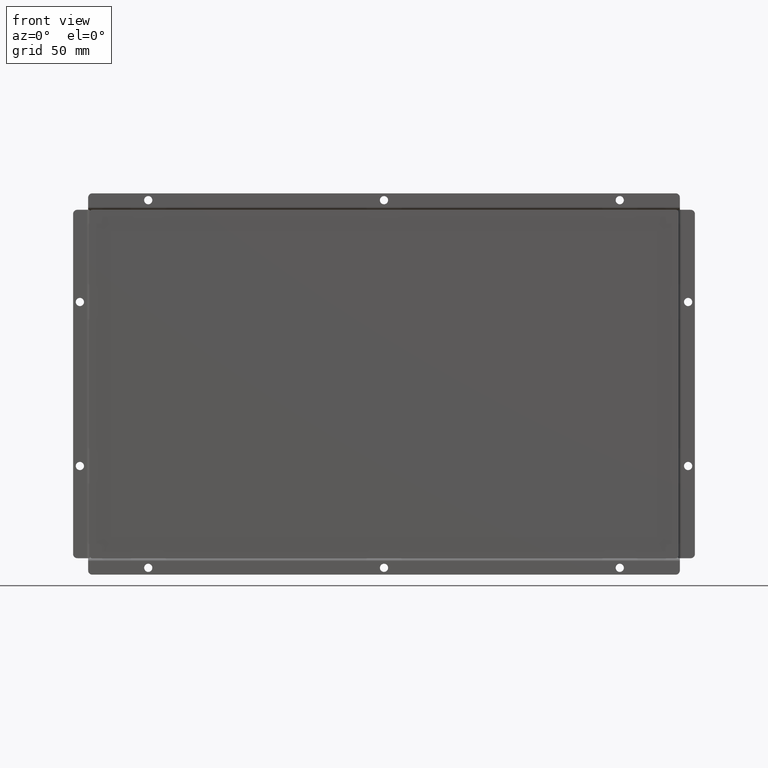
[diagram: clean part render]
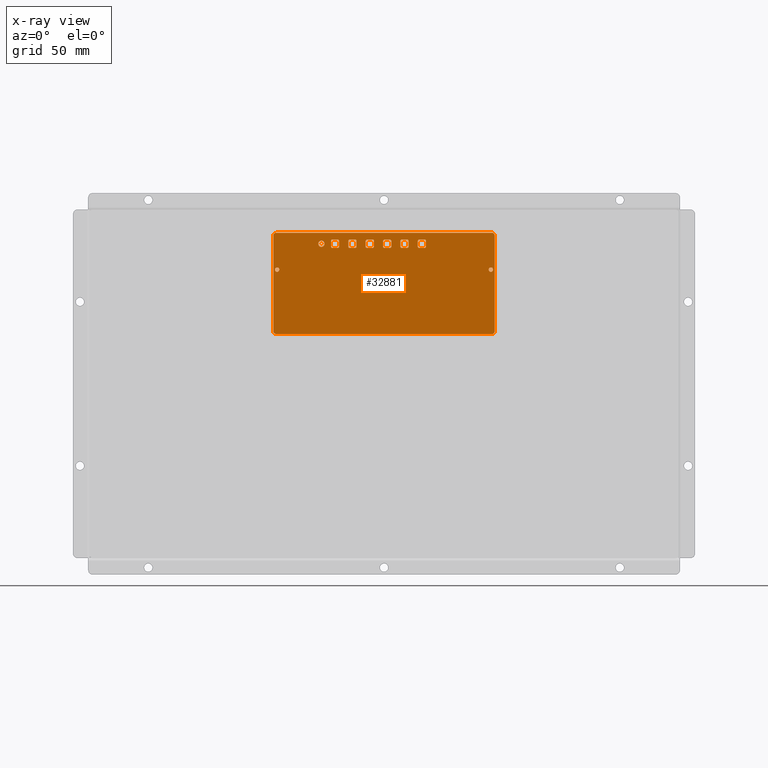
[diagram: x-ray — body ghosted, one internal face saturated and labeled with its STEP entity id]
A machine part, front view, then the same camera in x-ray: the body is ghosted and one INTERNAL B-rep face — a face not visible from any outside direction — is saturated and labeled: STEP entity #32881.
In plain terms, the highlighted planar face has unit normal (0, 1, -0).
Its self-contained STEP definition (entity closure, byte-faithful):
#805=FACE_BOUND('',#5186,.T.);
#806=FACE_BOUND('',#5187,.T.);
#807=FACE_BOUND('',#5188,.T.);
#808=FACE_BOUND('',#5189,.T.);
#809=FACE_BOUND('',#5190,.T.);
#810=FACE_BOUND('',#5191,.T.);
#811=FACE_BOUND('',#5192,.T.);
#812=FACE_BOUND('',#5193,.T.);
#813=FACE_BOUND('',#5194,.T.);
#1765=CIRCLE('',#35388,1.);
#1767=CIRCLE('',#35392,1.);
#1769=CIRCLE('',#35396,1.);
#1771=CIRCLE('',#35400,1.);
#1773=CIRCLE('',#35404,1.);
#1775=CIRCLE('',#35408,1.);
#1777=CIRCLE('',#35412,1.);
#1779=CIRCLE('',#35416,1.);
#1781=CIRCLE('',#35420,1.);
#1783=CIRCLE('',#35424,1.);
#1785=CIRCLE('',#35428,1.);
#1787=CIRCLE('',#35432,1.);
#1789=CIRCLE('',#35436,1.);
#1791=CIRCLE('',#35440,1.);
#1793=CIRCLE('',#35444,1.);
#1795=CIRCLE('',#35448,1.);
#1797=CIRCLE('',#35452,1.);
#1799=CIRCLE('',#35456,1.);
#1801=CIRCLE('',#35460,1.);
#1803=CIRCLE('',#35464,1.);
#1805=CIRCLE('',#35468,1.);
#1807=CIRCLE('',#35472,1.);
#1809=CIRCLE('',#35476,1.);
#1811=CIRCLE('',#35480,1.);
#1813=CIRCLE('',#35484,2.25);
#1815=CIRCLE('',#35487,2.);
#1816=CIRCLE('',#35490,2.);
#1817=CIRCLE('',#35491,2.);
#1818=CIRCLE('',#35492,2.);
#1819=CIRCLE('',#35493,1.6);
#1820=CIRCLE('',#35494,1.6);
#3251=FACE_OUTER_BOUND('',#5185,.T.);
#5185=EDGE_LOOP('',(#22855,#22856,#22857,#22858,#22859,#22860,#22861,#22862));
#5186=EDGE_LOOP('',(#22863,#22864,#22865,#22866,#22867,#22868,#22869,#22870));
#5187=EDGE_LOOP('',(#22871,#22872,#22873,#22874,#22875,#22876,#22877,#22878));
#5188=EDGE_LOOP('',(#22879,#22880,#22881,#22882,#22883,#22884,#22885,#22886));
#5189=EDGE_LOOP('',(#22887));
#5190=EDGE_LOOP('',(#22888,#22889,#22890,#22891,#22892,#22893,#22894,#22895));
#5191=EDGE_LOOP('',(#22896,#22897,#22898,#22899,#22900,#22901,#22902,#22903));
#5192=EDGE_LOOP('',(#22904,#22905,#22906,#22907,#22908,#22909,#22910,#22911));
#5193=EDGE_LOOP('',(#22912));
#5194=EDGE_LOOP('',(#22913));
#7431=LINE('',#49773,#10527);
#7434=LINE('',#49784,#10530);
#7439=LINE('',#49797,#10535);
#7441=LINE('',#49805,#10537);
#7447=LINE('',#49821,#10543);
#7450=LINE('',#49832,#10546);
#7455=LINE('',#49845,#10551);
#7457=LINE('',#49853,#10553);
#7463=LINE('',#49869,#10559);
#7466=LINE('',#49880,#10562);
#7471=LINE('',#49893,#10567);
#7473=LINE('',#49901,#10569);
#7479=LINE('',#49917,#10575);
#7482=LINE('',#49928,#10578);
#7487=LINE('',#49941,#10583);
#7489=LINE('',#49949,#10585);
#7495=LINE('',#49965,#10591);
#7498=LINE('',#49976,#10594);
#7503=LINE('',#49989,#10599);
#7505=LINE('',#49997,#10601);
#7511=LINE('',#50013,#10607);
#7514=LINE('',#50024,#10610);
#7519=LINE('',#50037,#10615);
#7521=LINE('',#50045,#10617);
#7526=LINE('',#50064,#10622);
#7529=LINE('',#50070,#10625);
#7530=LINE('',#50074,#10626);
#7531=LINE('',#50078,#10627);
#10527=VECTOR('',#39610,10.);
#10530=VECTOR('',#39621,10.);
#10535=VECTOR('',#39634,10.);
#10537=VECTOR('',#39644,10.);
#10543=VECTOR('',#39658,10.);
#10546=VECTOR('',#39669,10.);
#10551=VECTOR('',#39682,10.);
#10553=VECTOR('',#39692,10.);
#10559=VECTOR('',#39706,10.);
#10562=VECTOR('',#39717,10.);
#10567=VECTOR('',#39730,10.);
#10569=VECTOR('',#39740,10.);
#10575=VECTOR('',#39754,10.);
#10578=VECTOR('',#39765,10.);
#10583=VECTOR('',#39778,10.);
#10585=VECTOR('',#39788,10.);
#10591=VECTOR('',#39802,10.);
#10594=VECTOR('',#39813,10.);
#10599=VECTOR('',#39826,10.);
#10601=VECTOR('',#39836,10.);
#10607=VECTOR('',#39850,10.);
#10610=VECTOR('',#39861,10.);
#10615=VECTOR('',#39874,10.);
#10617=VECTOR('',#39884,10.);
#10622=VECTOR('',#39903,10.);
#10625=VECTOR('',#39908,10.);
#10626=VECTOR('',#39911,10.);
#10627=VECTOR('',#39914,10.);
#13631=VERTEX_POINT('',#49763);
#13632=VERTEX_POINT('',#49765);
#13634=VERTEX_POINT('',#49771);
#13637=VERTEX_POINT('',#49778);
#13638=VERTEX_POINT('',#49780);
#13640=VERTEX_POINT('',#49789);
#13642=VERTEX_POINT('',#49795);
#13644=VERTEX_POINT('',#49801);
#13647=VERTEX_POINT('',#49811);
#13648=VERTEX_POINT('',#49813);
#13650=VERTEX_POINT('',#49819);
#13653=VERTEX_POINT('',#49826);
#13654=VERTEX_POINT('',#49828);
#13656=VERTEX_POINT('',#49837);
#13658=VERTEX_POINT('',#49843);
#13660=VERTEX_POINT('',#49849);
#13663=VERTEX_POINT('',#49859);
#13664=VERTEX_POINT('',#49861);
#13666=VERTEX_POINT('',#49867);
#13669=VERTEX_POINT('',#49874);
#13670=VERTEX_POINT('',#49876);
#13672=VERTEX_POINT('',#49885);
#13674=VERTEX_POINT('',#49891);
#13676=VERTEX_POINT('',#49897);
#13679=VERTEX_POINT('',#49907);
#13680=VERTEX_POINT('',#49909);
#13682=VERTEX_POINT('',#49915);
#13685=VERTEX_POINT('',#49922);
#13686=VERTEX_POINT('',#49924);
#13688=VERTEX_POINT('',#49933);
#13690=VERTEX_POINT('',#49939);
#13692=VERTEX_POINT('',#49945);
#13695=VERTEX_POINT('',#49955);
#13696=VERTEX_POINT('',#49957);
#13698=VERTEX_POINT('',#49963);
#13701=VERTEX_POINT('',#49970);
#13702=VERTEX_POINT('',#49972);
#13704=VERTEX_POINT('',#49981);
#13706=VERTEX_POINT('',#49987);
#13708=VERTEX_POINT('',#49993);
#13711=VERTEX_POINT('',#50003);
#13712=VERTEX_POINT('',#50005);
#13714=VERTEX_POINT('',#50011);
#13717=VERTEX_POINT('',#50018);
#13718=VERTEX_POINT('',#50020);
#13720=VERTEX_POINT('',#50029);
#13722=VERTEX_POINT('',#50035);
#13724=VERTEX_POINT('',#50041);
#13726=VERTEX_POINT('',#50050);
#13729=VERTEX_POINT('',#50057);
#13730=VERTEX_POINT('',#50059);
#13731=VERTEX_POINT('',#50063);
#13733=VERTEX_POINT('',#50069);
#13734=VERTEX_POINT('',#50071);
#13735=VERTEX_POINT('',#50073);
#13736=VERTEX_POINT('',#50075);
#13737=VERTEX_POINT('',#50077);
#13738=VERTEX_POINT('',#50080);
#13739=VERTEX_POINT('',#50082);
#17066=EDGE_CURVE('',#13631,#13632,#1765,.T.);
#17070=EDGE_CURVE('',#13631,#13634,#7431,.T.);
#17073=EDGE_CURVE('',#13637,#13638,#1767,.T.);
#17075=EDGE_CURVE('',#13637,#13632,#7434,.T.);
#17079=EDGE_CURVE('',#13640,#13634,#1769,.T.);
#17082=EDGE_CURVE('',#13640,#13642,#7439,.T.);
#17085=EDGE_CURVE('',#13644,#13642,#1771,.T.);
#17086=EDGE_CURVE('',#13644,#13638,#7441,.T.);
#17090=EDGE_CURVE('',#13647,#13648,#1773,.T.);
#17094=EDGE_CURVE('',#13647,#13650,#7447,.T.);
#17097=EDGE_CURVE('',#13653,#13654,#1775,.T.);
#17099=EDGE_CURVE('',#13653,#13648,#7450,.T.);
#17103=EDGE_CURVE('',#13656,#13650,#1777,.T.);
#17106=EDGE_CURVE('',#13656,#13658,#7455,.T.);
#17109=EDGE_CURVE('',#13660,#13658,#1779,.T.);
#17110=EDGE_CURVE('',#13660,#13654,#7457,.T.);
#17114=EDGE_CURVE('',#13663,#13664,#1781,.T.);
#17118=EDGE_CURVE('',#13663,#13666,#7463,.T.);
#17121=EDGE_CURVE('',#13669,#13670,#1783,.T.);
#17123=EDGE_CURVE('',#13669,#13664,#7466,.T.);
#17127=EDGE_CURVE('',#13672,#13666,#1785,.T.);
#17130=EDGE_CURVE('',#13672,#13674,#7471,.T.);
#17133=EDGE_CURVE('',#13676,#13674,#1787,.T.);
#17134=EDGE_CURVE('',#13676,#13670,#7473,.T.);
#17138=EDGE_CURVE('',#13679,#13680,#1789,.T.);
#17142=EDGE_CURVE('',#13679,#13682,#7479,.T.);
#17145=EDGE_CURVE('',#13685,#13686,#1791,.T.);
#17147=EDGE_CURVE('',#13685,#13680,#7482,.T.);
#17151=EDGE_CURVE('',#13688,#13682,#1793,.T.);
#17154=EDGE_CURVE('',#13688,#13690,#7487,.T.);
#17157=EDGE_CURVE('',#13692,#13690,#1795,.T.);
#17158=EDGE_CURVE('',#13692,#13686,#7489,.T.);
#17162=EDGE_CURVE('',#13695,#13696,#1797,.T.);
#17166=EDGE_CURVE('',#13695,#13698,#7495,.T.);
#17169=EDGE_CURVE('',#13701,#13702,#1799,.T.);
#17171=EDGE_CURVE('',#13701,#13696,#7498,.T.);
#17175=EDGE_CURVE('',#13704,#13698,#1801,.T.);
#17178=EDGE_CURVE('',#13704,#13706,#7503,.T.);
#17181=EDGE_CURVE('',#13708,#13706,#1803,.T.);
#17182=EDGE_CURVE('',#13708,#13702,#7505,.T.);
#17186=EDGE_CURVE('',#13711,#13712,#1805,.T.);
#17190=EDGE_CURVE('',#13711,#13714,#7511,.T.);
#17193=EDGE_CURVE('',#13717,#13718,#1807,.T.);
#17195=EDGE_CURVE('',#13717,#13712,#7514,.T.);
#17199=EDGE_CURVE('',#13720,#13714,#1809,.T.);
#17202=EDGE_CURVE('',#13720,#13722,#7519,.T.);
#17205=EDGE_CURVE('',#13724,#13722,#1811,.T.);
#17206=EDGE_CURVE('',#13724,#13718,#7521,.T.);
#17210=EDGE_CURVE('',#13726,#13726,#1813,.T.);
#17213=EDGE_CURVE('',#13729,#13730,#1815,.T.);
#17215=EDGE_CURVE('',#13731,#13730,#7526,.T.);
#17218=EDGE_CURVE('',#13729,#13733,#7529,.T.);
#17219=EDGE_CURVE('',#13734,#13733,#1816,.T.);
#17220=EDGE_CURVE('',#13734,#13735,#7530,.T.);
#17221=EDGE_CURVE('',#13736,#13735,#1817,.T.);
#17222=EDGE_CURVE('',#13736,#13737,#7531,.T.);
#17223=EDGE_CURVE('',#13731,#13737,#1818,.T.);
#17224=EDGE_CURVE('',#13738,#13738,#1819,.T.);
#17225=EDGE_CURVE('',#13739,#13739,#1820,.T.);
#22855=ORIENTED_EDGE('',*,*,#17213,.F.);
#22856=ORIENTED_EDGE('',*,*,#17218,.T.);
#22857=ORIENTED_EDGE('',*,*,#17219,.F.);
#22858=ORIENTED_EDGE('',*,*,#17220,.T.);
#22859=ORIENTED_EDGE('',*,*,#17221,.F.);
#22860=ORIENTED_EDGE('',*,*,#17222,.T.);
#22861=ORIENTED_EDGE('',*,*,#17223,.F.);
#22862=ORIENTED_EDGE('',*,*,#17215,.T.);
#22863=ORIENTED_EDGE('',*,*,#17202,.T.);
#22864=ORIENTED_EDGE('',*,*,#17205,.F.);
#22865=ORIENTED_EDGE('',*,*,#17206,.T.);
#22866=ORIENTED_EDGE('',*,*,#17193,.F.);
#22867=ORIENTED_EDGE('',*,*,#17195,.T.);
#22868=ORIENTED_EDGE('',*,*,#17186,.F.);
#22869=ORIENTED_EDGE('',*,*,#17190,.T.);
#22870=ORIENTED_EDGE('',*,*,#17199,.F.);
#22871=ORIENTED_EDGE('',*,*,#17178,.T.);
#22872=ORIENTED_EDGE('',*,*,#17181,.F.);
#22873=ORIENTED_EDGE('',*,*,#17182,.T.);
#22874=ORIENTED_EDGE('',*,*,#17169,.F.);
#22875=ORIENTED_EDGE('',*,*,#17171,.T.);
#22876=ORIENTED_EDGE('',*,*,#17162,.F.);
#22877=ORIENTED_EDGE('',*,*,#17166,.T.);
#22878=ORIENTED_EDGE('',*,*,#17175,.F.);
#22879=ORIENTED_EDGE('',*,*,#17154,.T.);
#22880=ORIENTED_EDGE('',*,*,#17157,.F.);
#22881=ORIENTED_EDGE('',*,*,#17158,.T.);
#22882=ORIENTED_EDGE('',*,*,#17145,.F.);
#22883=ORIENTED_EDGE('',*,*,#17147,.T.);
#22884=ORIENTED_EDGE('',*,*,#17138,.F.);
#22885=ORIENTED_EDGE('',*,*,#17142,.T.);
#22886=ORIENTED_EDGE('',*,*,#17151,.F.);
#22887=ORIENTED_EDGE('',*,*,#17210,.T.);
#22888=ORIENTED_EDGE('',*,*,#17130,.T.);
#22889=ORIENTED_EDGE('',*,*,#17133,.F.);
#22890=ORIENTED_EDGE('',*,*,#17134,.T.);
#22891=ORIENTED_EDGE('',*,*,#17121,.F.);
#22892=ORIENTED_EDGE('',*,*,#17123,.T.);
#22893=ORIENTED_EDGE('',*,*,#17114,.F.);
#22894=ORIENTED_EDGE('',*,*,#17118,.T.);
#22895=ORIENTED_EDGE('',*,*,#17127,.F.);
#22896=ORIENTED_EDGE('',*,*,#17106,.T.);
#22897=ORIENTED_EDGE('',*,*,#17109,.F.);
#22898=ORIENTED_EDGE('',*,*,#17110,.T.);
#22899=ORIENTED_EDGE('',*,*,#17097,.F.);
#22900=ORIENTED_EDGE('',*,*,#17099,.T.);
#22901=ORIENTED_EDGE('',*,*,#17090,.F.);
#22902=ORIENTED_EDGE('',*,*,#17094,.T.);
#22903=ORIENTED_EDGE('',*,*,#17103,.F.);
#22904=ORIENTED_EDGE('',*,*,#17082,.T.);
#22905=ORIENTED_EDGE('',*,*,#17085,.F.);
#22906=ORIENTED_EDGE('',*,*,#17086,.T.);
#22907=ORIENTED_EDGE('',*,*,#17073,.F.);
#22908=ORIENTED_EDGE('',*,*,#17075,.T.);
#22909=ORIENTED_EDGE('',*,*,#17066,.F.);
#22910=ORIENTED_EDGE('',*,*,#17070,.T.);
#22911=ORIENTED_EDGE('',*,*,#17079,.F.);
#22912=ORIENTED_EDGE('',*,*,#17224,.T.);
#22913=ORIENTED_EDGE('',*,*,#17225,.T.);
#30425=PLANE('',#35489);
#32881=ADVANCED_FACE('',(#3251,#805,#806,#807,#808,#809,#810,#811,#812,
#813),#30425,.F.);
#35388=AXIS2_PLACEMENT_3D('',#49766,#39603,#39604);
#35392=AXIS2_PLACEMENT_3D('',#49781,#39616,#39617);
#35396=AXIS2_PLACEMENT_3D('',#49791,#39628,#39629);
#35400=AXIS2_PLACEMENT_3D('',#49803,#39640,#39641);
#35404=AXIS2_PLACEMENT_3D('',#49814,#39651,#39652);
#35408=AXIS2_PLACEMENT_3D('',#49829,#39664,#39665);
#35412=AXIS2_PLACEMENT_3D('',#49839,#39676,#39677);
#35416=AXIS2_PLACEMENT_3D('',#49851,#39688,#39689);
#35420=AXIS2_PLACEMENT_3D('',#49862,#39699,#39700);
#35424=AXIS2_PLACEMENT_3D('',#49877,#39712,#39713);
#35428=AXIS2_PLACEMENT_3D('',#49887,#39724,#39725);
#35432=AXIS2_PLACEMENT_3D('',#49899,#39736,#39737);
#35436=AXIS2_PLACEMENT_3D('',#49910,#39747,#39748);
#35440=AXIS2_PLACEMENT_3D('',#49925,#39760,#39761);
#35444=AXIS2_PLACEMENT_3D('',#49935,#39772,#39773);
#35448=AXIS2_PLACEMENT_3D('',#49947,#39784,#39785);
#35452=AXIS2_PLACEMENT_3D('',#49958,#39795,#39796);
#35456=AXIS2_PLACEMENT_3D('',#49973,#39808,#39809);
#35460=AXIS2_PLACEMENT_3D('',#49983,#39820,#39821);
#35464=AXIS2_PLACEMENT_3D('',#49995,#39832,#39833);
#35468=AXIS2_PLACEMENT_3D('',#50006,#39843,#39844);
#35472=AXIS2_PLACEMENT_3D('',#50021,#39856,#39857);
#35476=AXIS2_PLACEMENT_3D('',#50031,#39868,#39869);
#35480=AXIS2_PLACEMENT_3D('',#50043,#39880,#39881);
#35484=AXIS2_PLACEMENT_3D('',#50052,#39891,#39892);
#35487=AXIS2_PLACEMENT_3D('',#50060,#39898,#39899);
#35489=AXIS2_PLACEMENT_3D('',#50068,#39906,#39907);
#35490=AXIS2_PLACEMENT_3D('',#50072,#39909,#39910);
#35491=AXIS2_PLACEMENT_3D('',#50076,#39912,#39913);
#35492=AXIS2_PLACEMENT_3D('',#50079,#39915,#39916);
#35493=AXIS2_PLACEMENT_3D('',#50081,#39917,#39918);
#35494=AXIS2_PLACEMENT_3D('',#50083,#39919,#39920);
#39603=DIRECTION('center_axis',(0.,0.,-1.));
#39604=DIRECTION('ref_axis',(-0.707106781186551,-0.707106781186544,0.));
#39610=DIRECTION('',(1.,0.,0.));
#39616=DIRECTION('center_axis',(0.,0.,-1.));
#39617=DIRECTION('ref_axis',(-0.707106781186548,0.707106781186548,0.));
#39621=DIRECTION('',(0.,-1.,0.));
#39628=DIRECTION('center_axis',(0.,0.,-1.));
#39629=DIRECTION('ref_axis',(0.707106781186548,-0.707106781186548,0.));
#39634=DIRECTION('',(0.,1.,0.));
#39640=DIRECTION('center_axis',(0.,0.,-1.));
#39641=DIRECTION('ref_axis',(0.707106781186544,0.707106781186551,0.));
#39644=DIRECTION('',(-1.,0.,0.));
#39651=DIRECTION('center_axis',(0.,0.,-1.));
#39652=DIRECTION('ref_axis',(-0.707106781186549,-0.707106781186546,0.));
#39658=DIRECTION('',(1.,0.,0.));
#39664=DIRECTION('center_axis',(0.,0.,-1.));
#39665=DIRECTION('ref_axis',(-0.707106781186545,0.70710678118655,0.));
#39669=DIRECTION('',(0.,-1.,0.));
#39676=DIRECTION('center_axis',(0.,0.,-1.));
#39677=DIRECTION('ref_axis',(0.707106781186549,-0.707106781186546,0.));
#39682=DIRECTION('',(0.,1.,0.));
#39688=DIRECTION('center_axis',(0.,0.,-1.));
#39689=DIRECTION('ref_axis',(0.707106781186546,0.707106781186549,0.));
#39692=DIRECTION('',(-1.,0.,0.));
#39699=DIRECTION('center_axis',(0.,0.,-1.));
#39700=DIRECTION('ref_axis',(-0.707106781186549,-0.707106781186546,0.));
#39706=DIRECTION('',(1.,0.,0.));
#39712=DIRECTION('center_axis',(0.,0.,-1.));
#39713=DIRECTION('ref_axis',(-0.707106781186546,0.707106781186549,0.));
#39717=DIRECTION('',(0.,-1.,0.));
#39724=DIRECTION('center_axis',(0.,0.,-1.));
#39725=DIRECTION('ref_axis',(0.707106781186549,-0.707106781186546,0.));
#39730=DIRECTION('',(0.,1.,0.));
#39736=DIRECTION('center_axis',(0.,0.,-1.));
#39737=DIRECTION('ref_axis',(0.707106781186546,0.707106781186549,0.));
#39740=DIRECTION('',(-1.,0.,0.));
#39747=DIRECTION('center_axis',(0.,0.,-1.));
#39748=DIRECTION('ref_axis',(-0.707106781186548,-0.707106781186548,0.));
#39754=DIRECTION('',(1.,0.,0.));
#39760=DIRECTION('center_axis',(0.,0.,-1.));
#39761=DIRECTION('ref_axis',(-0.707106781186544,0.707106781186551,0.));
#39765=DIRECTION('',(0.,-1.,0.));
#39772=DIRECTION('center_axis',(0.,0.,-1.));
#39773=DIRECTION('ref_axis',(0.707106781186551,-0.707106781186544,0.));
#39778=DIRECTION('',(0.,1.,0.));
#39784=DIRECTION('center_axis',(0.,0.,-1.));
#39785=DIRECTION('ref_axis',(0.707106781186548,0.707106781186548,0.));
#39788=DIRECTION('',(-1.,0.,0.));
#39795=DIRECTION('center_axis',(0.,0.,-1.));
#39796=DIRECTION('ref_axis',(-0.707106781186548,-0.707106781186547,0.));
#39802=DIRECTION('',(1.,0.,0.));
#39808=DIRECTION('center_axis',(0.,0.,-1.));
#39809=DIRECTION('ref_axis',(-0.707106781186545,0.70710678118655,0.));
#39813=DIRECTION('',(0.,-1.,0.));
#39820=DIRECTION('center_axis',(0.,0.,-1.));
#39821=DIRECTION('ref_axis',(0.707106781186549,-0.707106781186546,0.));
#39826=DIRECTION('',(0.,1.,0.));
#39832=DIRECTION('center_axis',(0.,0.,-1.));
#39833=DIRECTION('ref_axis',(0.707106781186546,0.707106781186549,0.));
#39836=DIRECTION('',(-1.,0.,0.));
#39843=DIRECTION('center_axis',(0.,0.,-1.));
#39844=DIRECTION('ref_axis',(-0.707106781186549,-0.707106781186546,0.));
#39850=DIRECTION('',(1.,0.,0.));
#39856=DIRECTION('center_axis',(0.,0.,-1.));
#39857=DIRECTION('ref_axis',(-0.707106781186546,0.707106781186549,0.));
#39861=DIRECTION('',(0.,-1.,0.));
#39868=DIRECTION('center_axis',(0.,0.,-1.));
#39869=DIRECTION('ref_axis',(0.707106781186551,-0.707106781186544,0.));
#39874=DIRECTION('',(0.,1.,0.));
#39880=DIRECTION('center_axis',(0.,0.,-1.));
#39881=DIRECTION('ref_axis',(0.707106781186548,0.707106781186548,0.));
#39884=DIRECTION('',(-1.,0.,0.));
#39891=DIRECTION('center_axis',(0.,0.,1.));
#39892=DIRECTION('ref_axis',(-1.,0.,0.));
#39898=DIRECTION('center_axis',(0.,0.,1.));
#39899=DIRECTION('ref_axis',(0.707106781186548,-0.707106781186548,0.));
#39903=DIRECTION('',(-3.00060276925719E-15,-1.,0.));
#39906=DIRECTION('center_axis',(0.,0.,1.));
#39907=DIRECTION('ref_axis',(1.,0.,0.));
#39908=DIRECTION('',(-1.,-4.66019541200685E-16,0.));
#39909=DIRECTION('center_axis',(0.,0.,1.));
#39910=DIRECTION('ref_axis',(-0.707106781186546,-0.707106781186549,0.));
#39911=DIRECTION('',(9.601928861623E-16,1.,0.));
#39912=DIRECTION('center_axis',(0.,0.,1.));
#39913=DIRECTION('ref_axis',(-0.707106781186546,0.707106781186549,0.));
#39914=DIRECTION('',(1.,0.,0.));
#39915=DIRECTION('center_axis',(0.,0.,1.));
#39916=DIRECTION('ref_axis',(0.707106781186548,0.707106781186548,0.));
#39917=DIRECTION('center_axis',(0.,0.,1.));
#39918=DIRECTION('ref_axis',(-1.,0.,0.));
#39919=DIRECTION('center_axis',(0.,0.,1.));
#39920=DIRECTION('ref_axis',(-1.,0.,0.));
#49763=CARTESIAN_POINT('',(32.3,28.9999999999994,0.));
#49765=CARTESIAN_POINT('',(31.3,29.9999999999994,0.));
#49766=CARTESIAN_POINT('Origin',(32.3,29.9999999999994,0.));
#49771=CARTESIAN_POINT('',(36.3,28.9999999999994,0.));
#49773=CARTESIAN_POINT('',(17.9000000000001,28.9999999999994,0.));
#49778=CARTESIAN_POINT('',(31.3,33.9999999999994,0.));
#49780=CARTESIAN_POINT('',(32.3,34.9999999999994,0.));
#49781=CARTESIAN_POINT('Origin',(32.3,33.9999999999994,0.));
#49784=CARTESIAN_POINT('',(31.3,15.9999999999995,0.));
#49789=CARTESIAN_POINT('',(37.3,29.9999999999994,0.));
#49791=CARTESIAN_POINT('Origin',(36.3,29.9999999999994,0.));
#49795=CARTESIAN_POINT('',(37.3,33.9999999999994,0.));
#49797=CARTESIAN_POINT('',(37.3,18.9999999999995,0.));
#49801=CARTESIAN_POINT('',(36.3,34.9999999999994,0.));
#49803=CARTESIAN_POINT('Origin',(36.3,33.9999999999994,0.));
#49805=CARTESIAN_POINT('',(14.9000000000001,34.9999999999994,0.));
#49811=CARTESIAN_POINT('',(6.90000000000003,28.9999999999995,0.));
#49813=CARTESIAN_POINT('',(5.90000000000003,29.9999999999995,0.));
#49814=CARTESIAN_POINT('Origin',(6.90000000000003,29.9999999999995,0.));
#49819=CARTESIAN_POINT('',(10.9,28.9999999999995,0.));
#49821=CARTESIAN_POINT('',(5.20000000000014,28.9999999999995,0.));
#49826=CARTESIAN_POINT('',(5.90000000000003,33.9999999999995,0.));
#49828=CARTESIAN_POINT('',(6.90000000000003,34.9999999999995,0.));
#49829=CARTESIAN_POINT('Origin',(6.90000000000003,33.9999999999995,0.));
#49832=CARTESIAN_POINT('',(5.90000000000003,15.9999999999996,0.));
#49837=CARTESIAN_POINT('',(11.9,29.9999999999995,0.));
#49839=CARTESIAN_POINT('Origin',(10.9,29.9999999999995,0.));
#49843=CARTESIAN_POINT('',(11.9,33.9999999999995,0.));
#49845=CARTESIAN_POINT('',(11.9,18.9999999999996,0.));
#49849=CARTESIAN_POINT('',(10.9,34.9999999999995,0.));
#49851=CARTESIAN_POINT('Origin',(10.9,33.9999999999995,0.));
#49853=CARTESIAN_POINT('',(2.20000000000014,34.9999999999995,0.));
#49859=CARTESIAN_POINT('',(-18.5,28.9999999999995,0.));
#49861=CARTESIAN_POINT('',(-19.5,29.9999999999995,0.));
#49862=CARTESIAN_POINT('Origin',(-18.5,29.9999999999995,0.));
#49867=CARTESIAN_POINT('',(-14.5,28.9999999999995,0.));
#49869=CARTESIAN_POINT('',(-7.49999999999986,28.9999999999995,0.));
#49874=CARTESIAN_POINT('',(-19.5,33.9999999999995,0.));
#49876=CARTESIAN_POINT('',(-18.5,34.9999999999995,0.));
#49877=CARTESIAN_POINT('Origin',(-18.5,33.9999999999995,0.));
#49880=CARTESIAN_POINT('',(-19.5,15.9999999999996,0.));
#49885=CARTESIAN_POINT('',(-13.5,29.9999999999995,0.));
#49887=CARTESIAN_POINT('Origin',(-14.5,29.9999999999995,0.));
#49891=CARTESIAN_POINT('',(-13.5,33.9999999999995,0.));
#49893=CARTESIAN_POINT('',(-13.5,18.9999999999996,0.));
#49897=CARTESIAN_POINT('',(-14.5,34.9999999999995,0.));
#49899=CARTESIAN_POINT('Origin',(-14.5,33.9999999999995,0.));
#49901=CARTESIAN_POINT('',(-10.4999999999999,34.9999999999995,0.));
#49907=CARTESIAN_POINT('',(-31.2,28.9999999999996,0.));
#49909=CARTESIAN_POINT('',(-32.2,29.9999999999996,0.));
#49910=CARTESIAN_POINT('Origin',(-31.2,29.9999999999996,0.));
#49915=CARTESIAN_POINT('',(-27.2,28.9999999999996,0.));
#49917=CARTESIAN_POINT('',(-13.8499999999999,28.9999999999996,0.));
#49922=CARTESIAN_POINT('',(-32.2,33.9999999999996,0.));
#49924=CARTESIAN_POINT('',(-31.2,34.9999999999996,0.));
#49925=CARTESIAN_POINT('Origin',(-31.2,33.9999999999996,0.));
#49928=CARTESIAN_POINT('',(-32.2,15.9999999999996,0.));
#49933=CARTESIAN_POINT('',(-26.2,29.9999999999996,0.));
#49935=CARTESIAN_POINT('Origin',(-27.2,29.9999999999996,0.));
#49939=CARTESIAN_POINT('',(-26.2,33.9999999999996,0.));
#49941=CARTESIAN_POINT('',(-26.2,18.9999999999996,0.));
#49945=CARTESIAN_POINT('',(-27.2,34.9999999999996,0.));
#49947=CARTESIAN_POINT('Origin',(-27.2,33.9999999999996,0.));
#49949=CARTESIAN_POINT('',(-16.8499999999999,34.9999999999996,0.));
#49955=CARTESIAN_POINT('',(-5.79999999999997,28.9999999999995,0.));
#49957=CARTESIAN_POINT('',(-6.79999999999997,29.9999999999995,0.));
#49958=CARTESIAN_POINT('Origin',(-5.79999999999997,29.9999999999995,0.));
#49963=CARTESIAN_POINT('',(-1.79999999999997,28.9999999999995,0.));
#49965=CARTESIAN_POINT('',(-1.14999999999986,28.9999999999995,0.));
#49970=CARTESIAN_POINT('',(-6.79999999999997,33.9999999999995,0.));
#49972=CARTESIAN_POINT('',(-5.79999999999997,34.9999999999995,0.));
#49973=CARTESIAN_POINT('Origin',(-5.79999999999997,33.9999999999995,0.));
#49976=CARTESIAN_POINT('',(-6.79999999999997,15.9999999999996,0.));
#49981=CARTESIAN_POINT('',(-0.799999999999974,29.9999999999995,0.));
#49983=CARTESIAN_POINT('Origin',(-1.79999999999997,29.9999999999995,0.));
#49987=CARTESIAN_POINT('',(-0.799999999999974,33.9999999999995,0.));
#49989=CARTESIAN_POINT('',(-0.799999999999974,18.9999999999996,0.));
#49993=CARTESIAN_POINT('',(-1.79999999999997,34.9999999999995,0.));
#49995=CARTESIAN_POINT('Origin',(-1.79999999999997,33.9999999999995,0.));
#49997=CARTESIAN_POINT('',(-4.14999999999986,34.9999999999995,0.));
#50003=CARTESIAN_POINT('',(19.6,28.9999999999994,0.));
#50005=CARTESIAN_POINT('',(18.6,29.9999999999994,0.));
#50006=CARTESIAN_POINT('Origin',(19.6,29.9999999999994,0.));
#50011=CARTESIAN_POINT('',(23.6,28.9999999999994,0.));
#50013=CARTESIAN_POINT('',(11.5500000000001,28.9999999999994,0.));
#50018=CARTESIAN_POINT('',(18.6,33.9999999999994,0.));
#50020=CARTESIAN_POINT('',(19.6,34.9999999999994,0.));
#50021=CARTESIAN_POINT('Origin',(19.6,33.9999999999994,0.));
#50024=CARTESIAN_POINT('',(18.6,15.9999999999996,0.));
#50029=CARTESIAN_POINT('',(24.6,29.9999999999994,0.));
#50031=CARTESIAN_POINT('Origin',(23.6,29.9999999999994,0.));
#50035=CARTESIAN_POINT('',(24.6,33.9999999999994,0.));
#50037=CARTESIAN_POINT('',(24.6,18.9999999999996,0.));
#50041=CARTESIAN_POINT('',(23.6,34.9999999999994,0.));
#50043=CARTESIAN_POINT('Origin',(23.6,33.9999999999994,0.));
#50045=CARTESIAN_POINT('',(8.55000000000014,34.9999999999994,0.));
#50050=CARTESIAN_POINT('',(46.549999999999,31.9999999999995,0.));
#50052=CARTESIAN_POINT('Origin',(44.299999999999,31.9999999999995,0.));
#50057=CARTESIAN_POINT('',(77.4999999999998,-34.0000000000002,0.));
#50059=CARTESIAN_POINT('',(79.4999999999999,-32.0000000000002,0.));
#50060=CARTESIAN_POINT('Origin',(77.4999999999998,-32.0000000000002,0.));
#50063=CARTESIAN_POINT('',(79.5000000000001,37.9999999999996,0.));
#50064=CARTESIAN_POINT('',(79.5000000000001,39.9999999999996,0.));
#50068=CARTESIAN_POINT('Origin',(-1.49999999999974,2.99999999999969,0.));
#50069=CARTESIAN_POINT('',(-80.4999999999994,-34.0000000000003,0.));
#50070=CARTESIAN_POINT('',(79.4999999999998,-34.0000000000002,0.));
#50071=CARTESIAN_POINT('',(-82.4999999999994,-32.0000000000003,0.));
#50072=CARTESIAN_POINT('Origin',(-80.4999999999995,-32.0000000000003,0.));
#50073=CARTESIAN_POINT('',(-82.4999999999994,37.9999999999996,0.));
#50074=CARTESIAN_POINT('',(-82.4999999999994,-34.0000000000003,0.));
#50075=CARTESIAN_POINT('',(-80.4999999999994,39.9999999999996,0.));
#50076=CARTESIAN_POINT('Origin',(-80.4999999999994,37.9999999999996,0.));
#50077=CARTESIAN_POINT('',(77.5000000000001,39.9999999999996,0.));
#50078=CARTESIAN_POINT('',(-82.4999999999994,39.9999999999996,0.));
#50079=CARTESIAN_POINT('Origin',(77.5000000000001,37.9999999999996,0.));
#50080=CARTESIAN_POINT('',(-78.1000000000011,13.0999999999995,0.));
#50081=CARTESIAN_POINT('Origin',(-79.7000000000011,13.0999999999995,0.));
#50082=CARTESIAN_POINT('',(78.2999999999989,13.0999999999996,0.));
#50083=CARTESIAN_POINT('Origin',(76.6999999999989,13.0999999999996,0.));